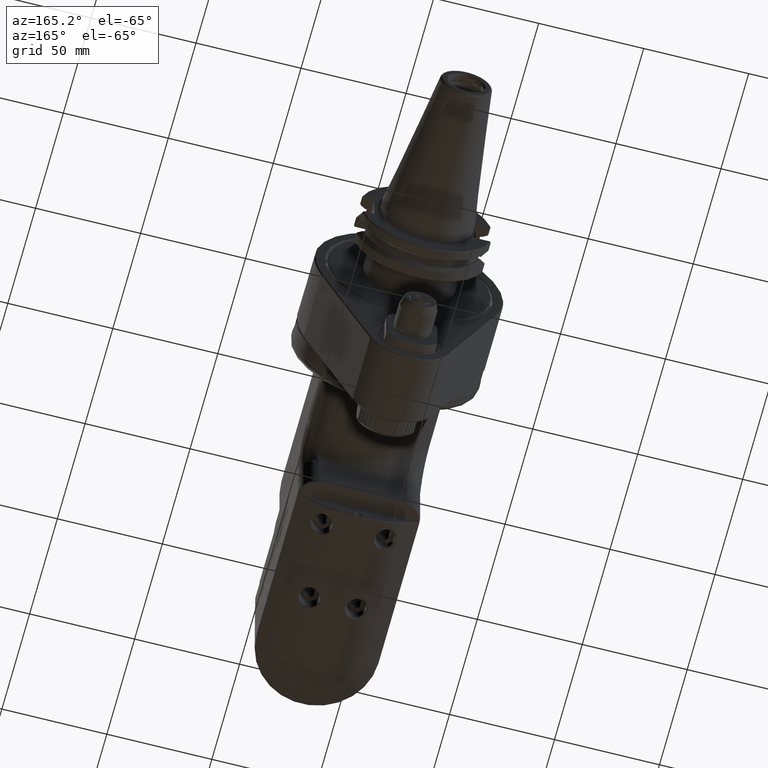
[diagram: clean part render]
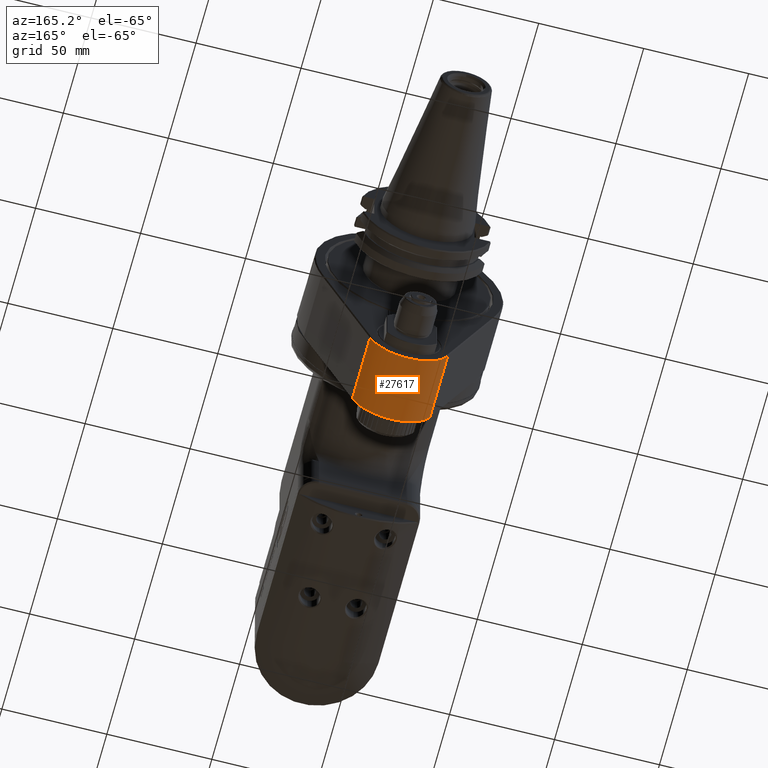
[diagram: same view with one face highlighted and labeled with its STEP entity id]
A machine part, auxiliary view. The second image highlights one B-rep face of the part: STEP entity #27617.
In plain terms, the highlighted cylindrical surface (partial cylindrical patch) has radius 20 mm, axis along (0, 1, 0).
Its self-contained STEP definition (entity closure, byte-faithful):
#391=CYLINDRICAL_SURFACE('',#30239,20.);
#2115=CIRCLE('',#30228,20.);
#2116=CIRCLE('',#30233,20.);
#3853=FACE_OUTER_BOUND('',#5555,.T.);
#5555=EDGE_LOOP('',(#24252,#24253,#24254,#24255));
#7845=LINE('',#50217,#10186);
#7850=LINE('',#50228,#10191);
#10186=VECTOR('',#37235,31.99969570828);
#10191=VECTOR('',#37250,31.99969563317);
#12973=VERTEX_POINT('',#50203);
#12974=VERTEX_POINT('',#50207);
#12975=VERTEX_POINT('',#50213);
#12977=VERTEX_POINT('',#50222);
#16808=EDGE_CURVE('',#12974,#12973,#2115,.T.);
#16813=EDGE_CURVE('',#12974,#12975,#7845,.T.);
#16816=EDGE_CURVE('',#12977,#12975,#2116,.T.);
#16819=EDGE_CURVE('',#12977,#12973,#7850,.T.);
#24252=ORIENTED_EDGE('',*,*,#16816,.T.);
#24253=ORIENTED_EDGE('',*,*,#16813,.F.);
#24254=ORIENTED_EDGE('',*,*,#16808,.T.);
#24255=ORIENTED_EDGE('',*,*,#16819,.F.);
#27617=ADVANCED_FACE('',(#3853),#391,.T.);
#30228=AXIS2_PLACEMENT_3D('',#50208,#37225,#37226);
#30233=AXIS2_PLACEMENT_3D('',#50223,#37242,#37243);
#30239=AXIS2_PLACEMENT_3D('',#50233,#37258,#37259);
#37225=DIRECTION('center_axis',(0.,1.,0.));
#37226=DIRECTION('ref_axis',(0.,0.,-1.));
#37235=DIRECTION('',(-1.323398429703E-13,1.,5.506758566547E-14));
#37242=DIRECTION('center_axis',(0.,-1.,0.));
#37243=DIRECTION('ref_axis',(0.,0.,-1.));
#37250=DIRECTION('',(-5.231420650501E-13,-1.,-2.184939694437E-13));
#37258=DIRECTION('center_axis',(0.,1.,0.));
#37259=DIRECTION('ref_axis',(1.,0.,0.));
#50203=CARTESIAN_POINT('',(-18.4615386000156,0.500150759076893,-72.6923076780329));
#50207=CARTESIAN_POINT('',(18.4615385976401,0.500150760657701,-72.6923076854321));
#50208=CARTESIAN_POINT('Origin',(-3.28625915289E-14,0.5003009281283,-65.));
#50213=CARTESIAN_POINT('',(18.4615384158396,32.4998497148327,-72.6923076096819));
#50217=CARTESIAN_POINT('',(18.46153848395,0.5001587565431,-72.69230763806));
#50222=CARTESIAN_POINT('',(-18.4615384204592,32.499849710546,-72.692307603216));
#50223=CARTESIAN_POINT('Origin',(-6.217247937901E-14,32.49969907187,-65.));
#50228=CARTESIAN_POINT('',(-18.46153848688,32.49985434569,-72.69230763089));
#50233=CARTESIAN_POINT('Origin',(0.,0.,-65.));